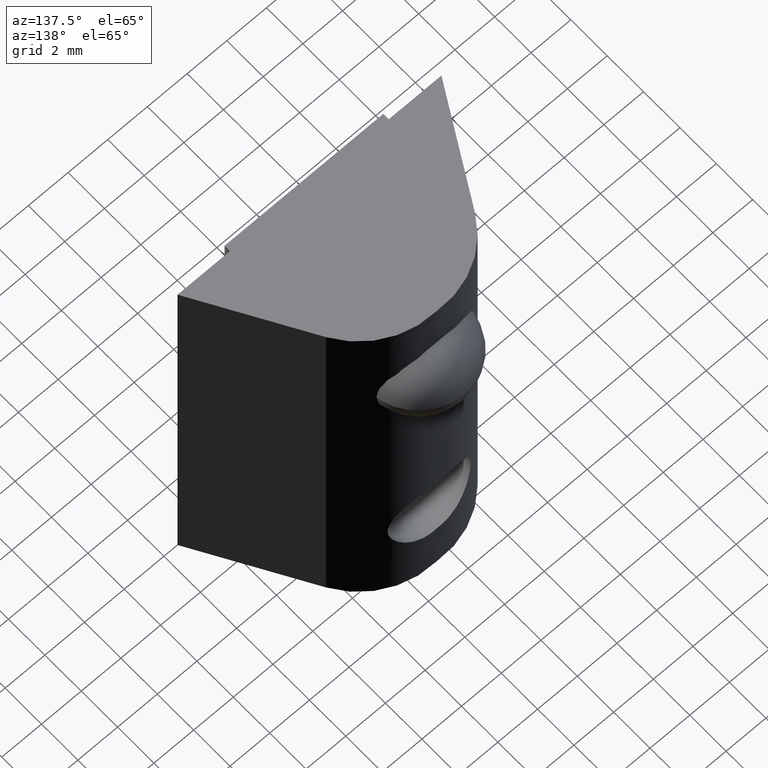
[diagram: clean part render]
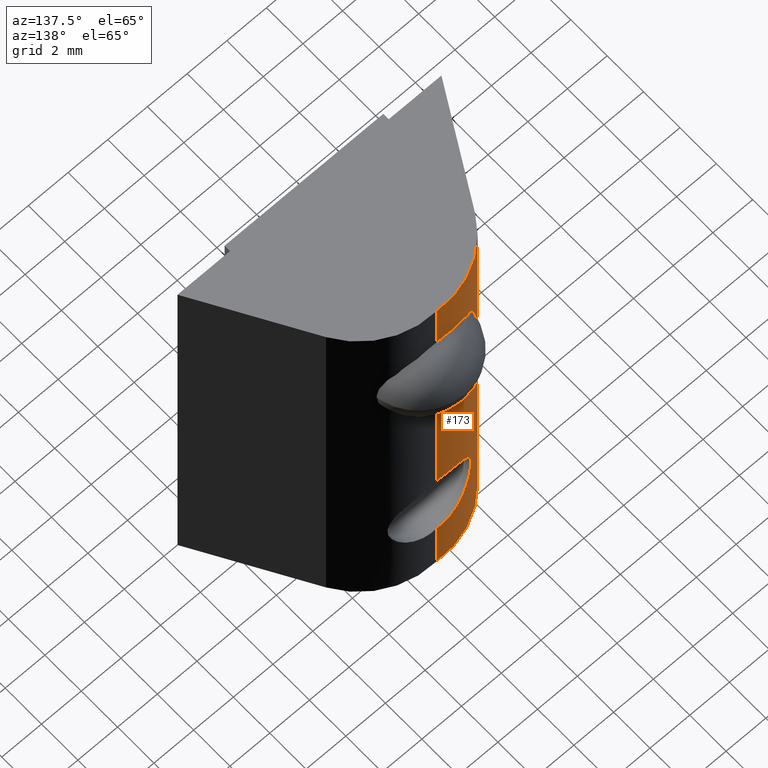
[diagram: same view with one face highlighted and labeled with its STEP entity id]
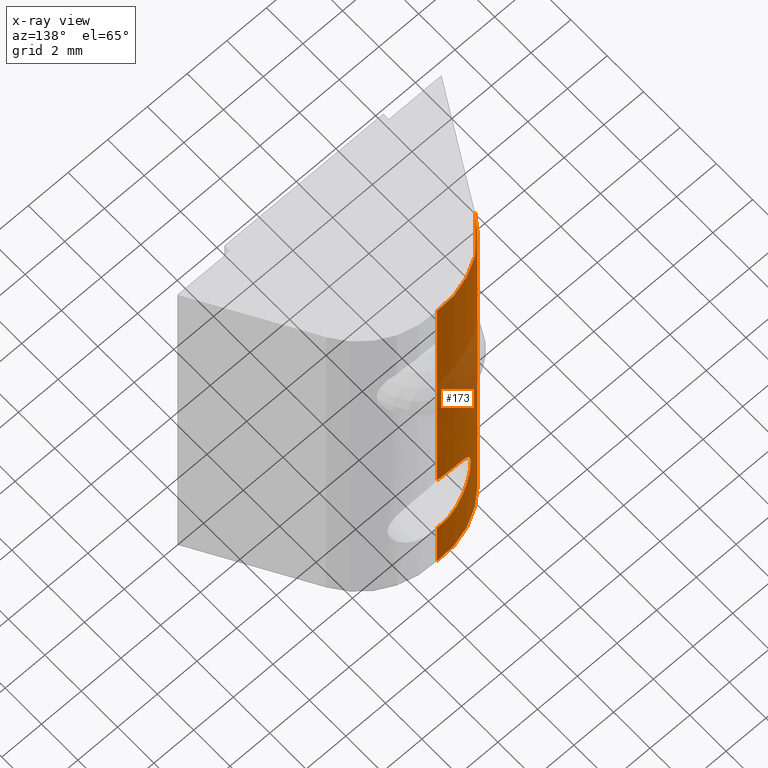
[diagram: x-ray of the same camera — body ghosted, the highlighted face saturated]
A machine part, auxiliary view. The second image highlights one B-rep face of the part: STEP entity #173.
The next image is the same camera in x-ray: the body ghosted, the highlighted face saturated — about 19% of this face is hidden behind the body in this view.
In plain terms, the highlighted cylindrical surface (partial cylindrical patch) has radius 4 mm, axis along (0, 0, 1).
Its self-contained STEP definition (entity closure, byte-faithful):
#15 = CARTESIAN_POINT ( 'NONE',  ( 0.0000000000000000000, 7.000000000000000000, -14.89999999999999900 ) ) ;
#20 = CARTESIAN_POINT ( 'NONE',  ( -1.670093248805526700, 6.767075733069885000, -15.71965499976650800 ) ) ;
#21 = CARTESIAN_POINT ( 'NONE',  ( 0.0000000000000000000, 7.000000000000000000, 0.0000000000000000000 ) ) ;
#25 = CARTESIAN_POINT ( 'NONE',  ( -1.065268130170007300, 6.943736811957330200, -18.83037812681127600 ) ) ;
#29 = CARTESIAN_POINT ( 'NONE',  ( -2.100340295472199200, 6.579119870751840800, -17.27598671402250500 ) ) ;
#56 = EDGE_LOOP ( 'NONE', ( #98, #696, #521, #128, #242, #433 ) ) ;
#83 = DIRECTION ( 'NONE',  ( -1.000000000000000000, 0.0000000000000000000, 0.0000000000000000000 ) ) ;
#86 = CARTESIAN_POINT ( 'NONE',  ( -0.6841240291442689500, 6.993631784759940300, -15.00978186247948900 ) ) ;
#96 = EDGE_CURVE ( 'NONE', #146, #407, #698, .T. ) ;
#98 = ORIENTED_EDGE ( 'NONE', *, *, #96, .F. ) ;
#106 = AXIS2_PLACEMENT_3D ( 'NONE', #453, #191, #83 ) ;
#128 = ORIENTED_EDGE ( 'NONE', *, *, #202, .F. ) ;
#134 = CARTESIAN_POINT ( 'NONE',  ( -2.168404344971008900E-016, 7.000000000000000000, -19.09999999999999400 ) ) ;
#143 = CARTESIAN_POINT ( 'NONE',  ( -1.670459469328647400, 6.766941291681751700, -18.27987192857328900 ) ) ;
#146 = VERTEX_POINT ( 'NONE', #744 ) ;
#173 = ADVANCED_FACE ( 'NONE', ( #777 ), #176, .T. ) ;
#176 = CYLINDRICAL_SURFACE ( 'NONE', #220, 4.000000000000000000 ) ;
#179 = DIRECTION ( 'NONE',  ( 1.000000000000000000, 0.0000000000000000000, 0.0000000000000000000 ) ) ;
#185 = DIRECTION ( 'NONE',  ( 0.0000000000000000000, 0.0000000000000000000, 1.000000000000000000 ) ) ;
#191 = DIRECTION ( 'NONE',  ( -0.0000000000000000000, -0.0000000000000000000, -1.000000000000000000 ) ) ;
#196 = CARTESIAN_POINT ( 'NONE',  ( -3.757047017994986900, 5.010741548740568000, -22.00000000000000000 ) ) ;
#197 = CARTESIAN_POINT ( 'NONE',  ( -1.297061383087251500, 6.887819709980458800, -18.67354579114834600 ) ) ;
#202 = EDGE_CURVE ( 'NONE', #538, #240, #316, .T. ) ;
#211 = CARTESIAN_POINT ( 'NONE',  ( -0.2778427095453834300, 7.013015978677898900, -14.91386525814885100 ) ) ;
#213 = CARTESIAN_POINT ( 'NONE',  ( -2.168404344971008900E-016, 7.000000000000000000, -19.09999999999999400 ) ) ;
#220 = AXIS2_PLACEMENT_3D ( 'NONE', #600, #804, #179 ) ;
#240 = VERTEX_POINT ( 'NONE', #506 ) ;
#242 = ORIENTED_EDGE ( 'NONE', *, *, #476, .T. ) ;
#246 = EDGE_CURVE ( 'NONE', #327, #407, #376, .T. ) ;
#265 = CARTESIAN_POINT ( 'NONE',  ( -2.099827479962586000, 6.579379551697454300, -16.85814070291563700 ) ) ;
#272 = CARTESIAN_POINT ( 'NONE',  ( -2.085941216390682800, 6.586504634481536300, -16.72104059423844900 ) ) ;
#291 = AXIS2_PLACEMENT_3D ( 'NONE', #395, #700, #705 ) ;
#299 = VECTOR ( 'NONE', #185, 1000.000000000000000 ) ;
#315 = CARTESIAN_POINT ( 'NONE',  ( -0.1401207566892644400, 7.010289564343477900, -19.09999999999999800 ) ) ;
#316 = CIRCLE ( 'NONE', #106, 4.000000000000000000 ) ;
#324 = CARTESIAN_POINT ( 'NONE',  ( -0.6862748488494195800, 6.993394619347875500, -18.98942124772581900 ) ) ;
#326 = DIRECTION ( 'NONE',  ( 0.0000000000000000000, 0.0000000000000000000, 1.000000000000000000 ) ) ;
#327 = VERTEX_POINT ( 'NONE', #571 ) ;
#376 = CIRCLE ( 'NONE', #291, 4.000000000000000000 ) ;
#386 = DIRECTION ( 'NONE',  ( 0.0000000000000000000, 0.0000000000000000000, 1.000000000000000000 ) ) ;
#390 = CARTESIAN_POINT ( 'NONE',  ( -1.583050752569967700, 6.798305301411265800, -15.61354713897170000 ) ) ;
#395 = CARTESIAN_POINT ( 'NONE',  ( -0.2929454028572334200, 3.010741548740566700, 0.0000000000000000000 ) ) ;
#396 = CARTESIAN_POINT ( 'NONE',  ( -2.044340105706191800, 6.608803008618784800, -17.55335733217449200 ) ) ;
#402 = CARTESIAN_POINT ( 'NONE',  ( -0.5527658157034888200, 7.004648108339561800, -19.03076204029941100 ) ) ;
#405 = CARTESIAN_POINT ( 'NONE',  ( -0.5492240288136823700, 7.004830928030088400, -14.96837313992467100 ) ) ;
#407 = VERTEX_POINT ( 'NONE', #21 ) ;
#412 = EDGE_CURVE ( 'NONE', #240, #678, #668, .T. ) ;
#433 = ORIENTED_EDGE ( 'NONE', *, *, #246, .T. ) ;
#434 = B_SPLINE_CURVE_WITH_KNOTS ( 'NONE', 3,
 ( #15, #514, #211, #405, #86, #645, #707, #390, #20, #648, #772, #764, #635, #272, #265, #29, #396, #465, #523, #143, #455, #197, #25, #324, #402, #464, #315, #134 ),
 .UNSPECIFIED., .F., .F.,
 ( 4, 2, 2, 2, 2, 2, 2, 2, 2, 2, 2, 2, 2, 4 ),
 ( 2.117074005974005400E-019, 0.0004148728083314233800, 0.0008297456166628465500, 0.001659491233325692900, 0.002074364041657117400, 0.002489236849988541900, 0.002904109658319966500, 0.003318982466651391000, 0.004148728083314229600, 0.004563600891645648900, 0.004978473699977069100, 0.005808219316639900800, 0.006223092124971314900, 0.006637964933302729000 ),
 .UNSPECIFIED. ) ;
#444 = CARTESIAN_POINT ( 'NONE',  ( -3.757047017994986900, 5.010741548740568000, -22.00000000000000000 ) ) ;
#453 = CARTESIAN_POINT ( 'NONE',  ( -0.2929454028572334200, 3.010741548740566700, -22.00000000000000000 ) ) ;
#455 = CARTESIAN_POINT ( 'NONE',  ( -1.583304727029543700, 6.798216803715933000, -18.38615550282337500 ) ) ;
#464 = CARTESIAN_POINT ( 'NONE',  ( -0.2786961704262103100, 7.013065025561826500, -19.08611431995495500 ) ) ;
#465 = CARTESIAN_POINT ( 'NONE',  ( -1.885905534317130700, 6.680324009748409800, -17.93393951455624000 ) ) ;
#476 = EDGE_CURVE ( 'NONE', #538, #327, #680, .T. ) ;
#495 = VECTOR ( 'NONE', #386, 1000.000000000000000 ) ;
#506 = CARTESIAN_POINT ( 'NONE',  ( 0.0000000000000000000, 7.000000000000000000, -22.00000000000000000 ) ) ;
#514 = CARTESIAN_POINT ( 'NONE',  ( -0.1400245413287801200, 7.010282498908166500, -14.90000000000000200 ) ) ;
#521 = ORIENTED_EDGE ( 'NONE', *, *, #412, .F. ) ;
#523 = CARTESIAN_POINT ( 'NONE',  ( -1.821627727605635600, 6.707998891988379100, -18.05365051807418900 ) ) ;
#538 = VERTEX_POINT ( 'NONE', #444 ) ;
#567 = CARTESIAN_POINT ( 'NONE',  ( 0.0000000000000000000, 7.000000000000000000, -22.00000000000000000 ) ) ;
#571 = CARTESIAN_POINT ( 'NONE',  ( -3.757047017994986900, 5.010741548740568000, 0.0000000000000000000 ) ) ;
#600 = CARTESIAN_POINT ( 'NONE',  ( -0.2929454028572334200, 3.010741548740566700, -22.00000000000000000 ) ) ;
#615 = CARTESIAN_POINT ( 'NONE',  ( 0.0000000000000000000, 7.000000000000000000, -22.00000000000000000 ) ) ;
#635 = CARTESIAN_POINT ( 'NONE',  ( -2.031638843905418500, 6.613221354478866900, -16.45098932958007900 ) ) ;
#645 = CARTESIAN_POINT ( 'NONE',  ( -1.065483002489959300, 6.943797238216979500, -15.16950234633370100 ) ) ;
#648 = CARTESIAN_POINT ( 'NONE',  ( -1.821280718181896400, 6.708142508589593200, -15.94575556681216900 ) ) ;
#668 = LINE ( 'NONE', #567, #495 ) ;
#678 = VERTEX_POINT ( 'NONE', #213 ) ;
#680 = LINE ( 'NONE', #196, #767 ) ;
#696 = ORIENTED_EDGE ( 'NONE', *, *, #713, .T. ) ;
#698 = LINE ( 'NONE', #615, #299 ) ;
#700 = DIRECTION ( 'NONE',  ( -0.0000000000000000000, -0.0000000000000000000, -1.000000000000000000 ) ) ;
#705 = DIRECTION ( 'NONE',  ( -1.000000000000000000, 0.0000000000000000000, 0.0000000000000000000 ) ) ;
#707 = CARTESIAN_POINT ( 'NONE',  ( -1.296584994652633500, 6.887950795788005300, -15.32606086254450300 ) ) ;
#713 = EDGE_CURVE ( 'NONE', #146, #678, #434, .T. ) ;
#744 = CARTESIAN_POINT ( 'NONE',  ( 0.0000000000000000000, 7.000000000000000000, -14.89999999999999900 ) ) ;
#764 = CARTESIAN_POINT ( 'NONE',  ( -1.990486400177826200, 6.633127672300301600, -16.31692743062239600 ) ) ;
#767 = VECTOR ( 'NONE', #326, 1000.000000000000000 ) ;
#772 = CARTESIAN_POINT ( 'NONE',  ( -1.885337724352162100, 6.680566253026357000, -16.06505299109328900 ) ) ;
#777 = FACE_OUTER_BOUND ( 'NONE', #56, .T. ) ;
#804 = DIRECTION ( 'NONE',  ( 0.0000000000000000000, 0.0000000000000000000, 1.000000000000000000 ) ) ;